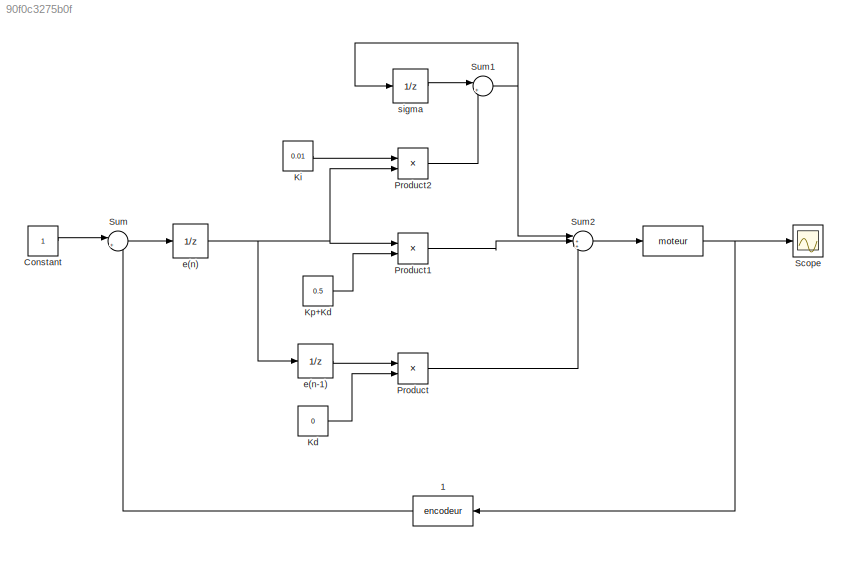
MODEL slx_90f0c3275b0f
KIND model
BLOCK [Fcn]  
  Expr = moteur
BLOCK [Fcn]  1
  Expr = encodeur
BLOCK [Constant] Constant
BLOCK [Constant] Kd
  Value = 0
BLOCK [Constant] Ki
  Value = 0.01
BLOCK [Constant] Kp+Kd
  Value = 0.5
BLOCK [Product] Product
  InputSameDT = off
  OutDataTypeStr = Inherit: Inherit via internal rule
  Ports = [2, 1]
  RndMeth = Floor
  SaturateOnIntegerOverflow = off
BLOCK [Product] Product1
  InputSameDT = off
  OutDataTypeStr = Inherit: Inherit via internal rule
  Ports = [2, 1]
  RndMeth = Floor
  SaturateOnIntegerOverflow = off
BLOCK [Product] Product2
  InputSameDT = off
  OutDataTypeStr = Inherit: Inherit via internal rule
  Ports = [2, 1]
  RndMeth = Floor
  SaturateOnIntegerOverflow = off
BLOCK [Scope] Scope
  Floating = off
  NumInputPorts = 1
  Ports = [1]
  ShowLegends = off
BLOCK [Sum] Sum
  IconShape = round
  InputSameDT = off
  Inputs = |+-
  OutDataTypeStr = Inherit: Inherit via internal rule
  Ports = [2, 1]
  SaturateOnIntegerOverflow = off
BLOCK [Sum] Sum1
  IconShape = round
  InputSameDT = off
  Inputs = |++
  OutDataTypeStr = Inherit: Inherit via internal rule
  Ports = [2, 1]
  SaturateOnIntegerOverflow = off
BLOCK [Sum] Sum2
  IconShape = round
  InputSameDT = off
  Inputs = |+++
  OutDataTypeStr = Inherit: Inherit via internal rule
  Ports = [3, 1]
  SaturateOnIntegerOverflow = off
BLOCK [UnitDelay] e(n)
  InputProcessing = Elements as channels (sample based)
  SampleTime = -1
BLOCK [UnitDelay] e(n-1) 
  InputProcessing = Elements as channels (sample based)
  SampleTime = -1
BLOCK [UnitDelay] sigma 
  InputProcessing = Elements as channels (sample based)
  SampleTime = -1
LINE  1:1 -> Sum:2
NET  :1 ->  1:1, Scope:1
LINE Constant:1 -> Sum:1
LINE Kd:1 -> Product:2
LINE Ki:1 -> Product2:1
LINE Kp+Kd:1 -> Product1:2
LINE Product1:1 -> Sum2:2
LINE Product2:1 -> Sum1:2
LINE Product:1 -> Sum2:3
NET Sum1:1 -> Sum2:1, sigma :1
LINE Sum2:1 ->  :1
LINE Sum:1 -> e(n):1
NET e(n):1 -> Product1:1, Product2:2, e(n-1) :1
LINE e(n-1) :1 -> Product:1
LINE sigma :1 -> Sum1:1
note: NET lines group one-source signal fan-out (src -> all destinations, sorted); 1:1 wires keep LINE
